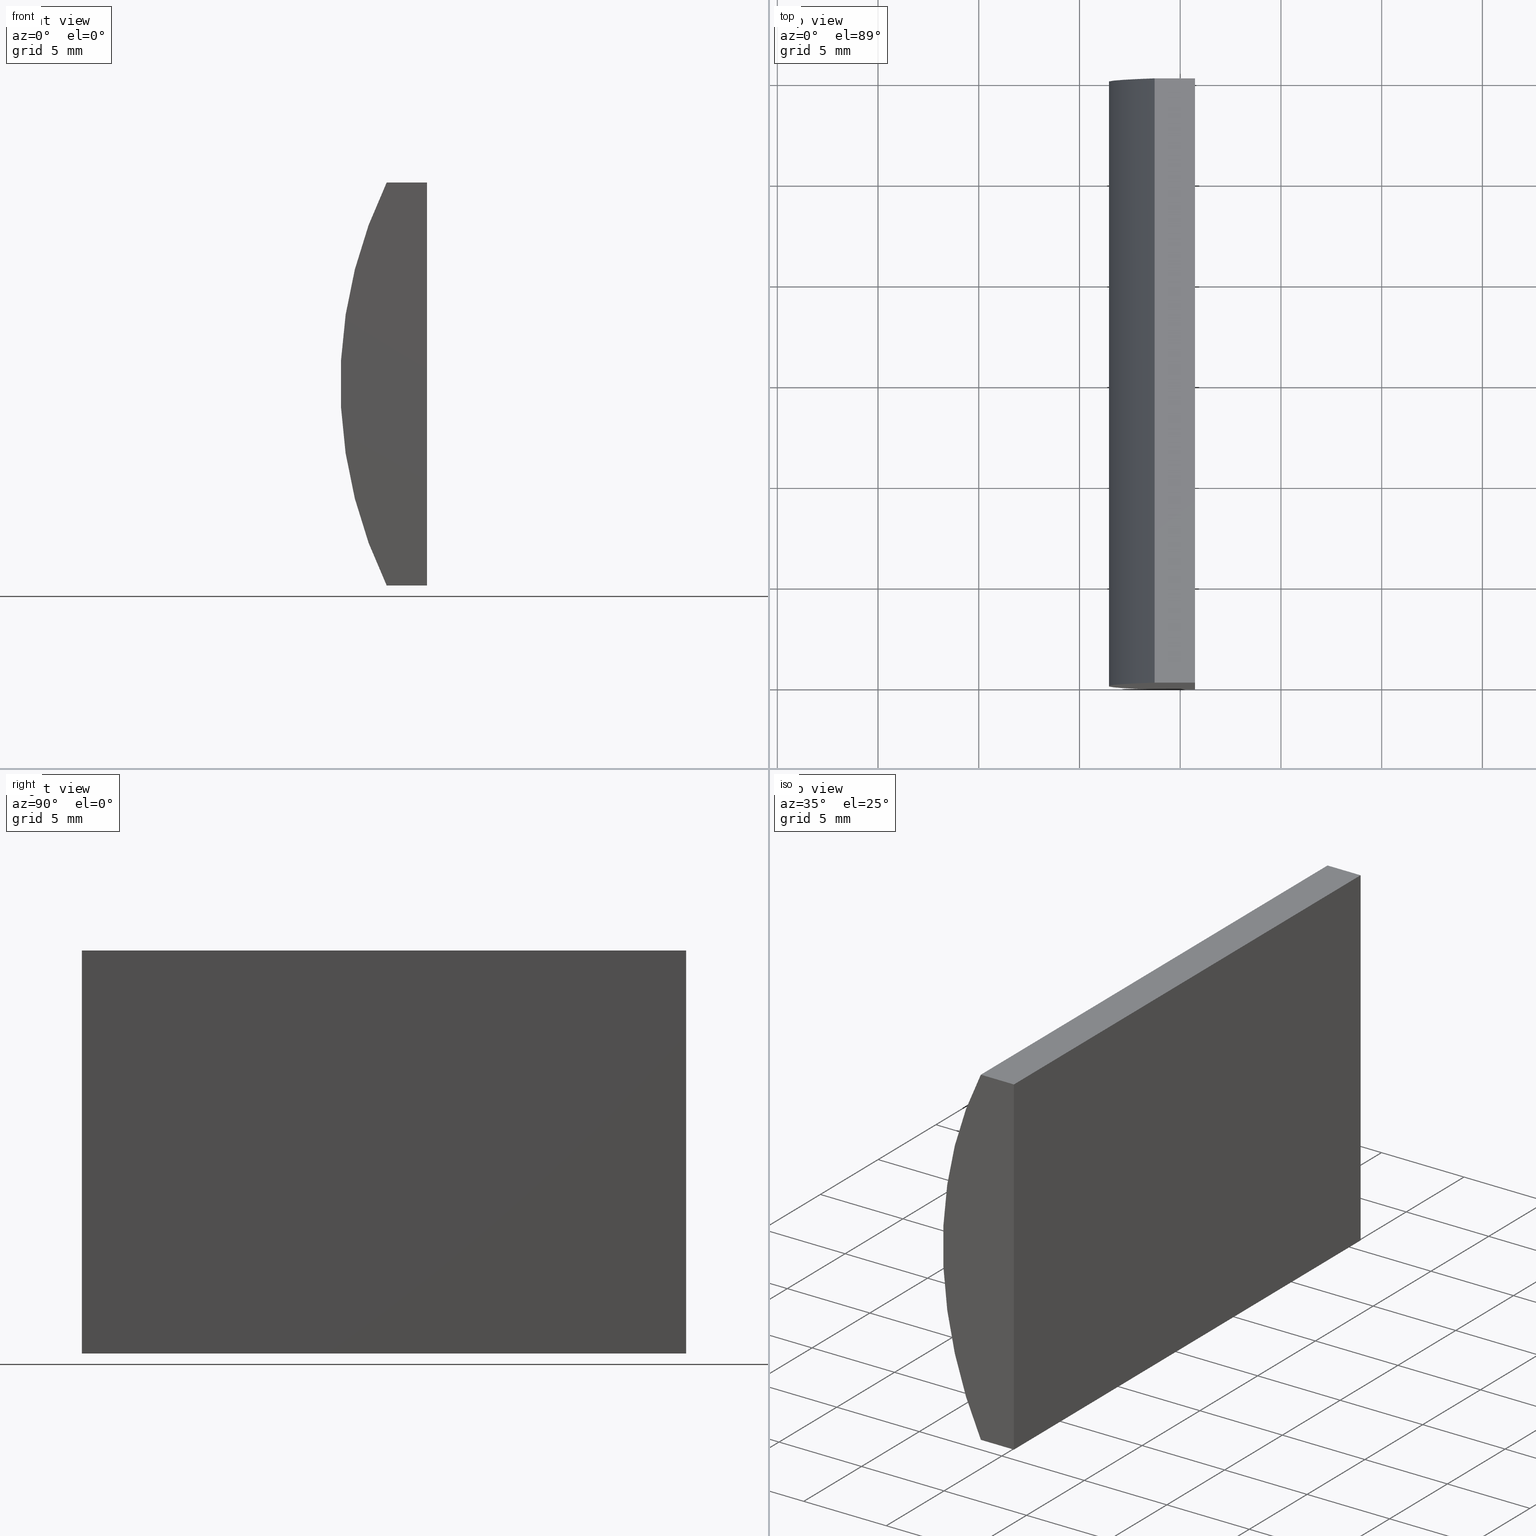
[diagram: canonical four-view strip — front | top / right | iso, engineering-drawing reading convention]
A machine part, canonical four-view strip (front | top / right | iso — engineering-drawing reading convention). The complete STEP part file that produces these views, byte-faithful:
ISO-10303-21;
HEADER;
FILE_DESCRIPTION (( 'STEP AP214' ),
    '1' );
FILE_NAME ('155295.STEP',
    '2019-06-26T06:27:41',
    ( 'user' ),
    ( '΢���й�' ),
    'SwSTEP 2.0',
    'SolidWorks 2016',
    '' );
FILE_SCHEMA (( 'AUTOMOTIVE_DESIGN' ));
ENDSEC;

DATA;
#1 = FILL_AREA_STYLE_COLOUR ( '', #80 ) ;
#2 = CARTESIAN_POINT ( 'NONE',  ( -16.26823863667994600, 30.00000000000000000, -10.00000000000000000 ) ) ;
#3 = CARTESIAN_POINT ( 'NONE',  ( -16.26823863667994600, 30.00000000000000000, 10.00000000000000000 ) ) ;
#4 = VECTOR ( 'NONE', #164, 1000.000000000000000 ) ;
#5 = DIRECTION ( 'NONE',  ( 0.0000000000000000000, 0.0000000000000000000, 1.000000000000000000 ) ) ;
#6 = LINE ( 'NONE', #158, #125 ) ;
#7 = SURFACE_STYLE_USAGE ( .BOTH. , #76 ) ;
#8 =( NAMED_UNIT ( * ) SI_UNIT ( $, .STERADIAN. ) SOLID_ANGLE_UNIT ( ) );
#9 = EDGE_CURVE ( 'NONE', #44, #12, #161, .T. ) ;
#10 = AXIS2_PLACEMENT_3D ( 'NONE', #2, #32, #70 ) ;
#11 = ORIENTED_EDGE ( 'NONE', *, *, #199, .F. ) ;
#12 = VERTEX_POINT ( 'NONE', #132 ) ;
#13 = PRODUCT_DEFINITION_SHAPE ( 'NONE', 'NONE',  #116 ) ;
#14 = SURFACE_STYLE_FILL_AREA ( #38 ) ;
#15 = ADVANCED_FACE ( 'NONE', ( #172 ), #33, .F. ) ;
#16 = PRODUCT_RELATED_PRODUCT_CATEGORY ( 'part', '', ( #97 ) ) ;
#17 = ORIENTED_EDGE ( 'NONE', *, *, #64, .T. ) ;
#18 = LINE ( 'NONE', #134, #113 ) ;
#19 = CARTESIAN_POINT ( 'NONE',  ( 4.355204334851265500, 0.0000000000000000000, 4.286263797015675000E-017 ) ) ;
#20 = DIRECTION ( 'NONE',  ( -0.0000000000000000000, -1.000000000000000000, -0.0000000000000000000 ) ) ;
#21 = EDGE_CURVE ( 'NONE', #121, #118, #65, .T. ) ;
#22 = CARTESIAN_POINT ( 'NONE',  ( 0.0000000000000000000, 0.0000000000000000000, 0.0000000000000000000 ) ) ;
#23 = DIRECTION ( 'NONE',  ( -1.000000000000000000, 0.0000000000000000000, -0.0000000000000000000 ) ) ;
#24 = DIRECTION ( 'NONE',  ( 0.0000000000000000000, 0.0000000000000000000, -1.000000000000000000 ) ) ;
#25 = LINE ( 'NONE', #182, #4 ) ;
#26 = MECHANICAL_DESIGN_GEOMETRIC_PRESENTATION_REPRESENTATION (  '', ( #160 ), #69 ) ;
#27 = ORIENTED_EDGE ( 'NONE', *, *, #199, .T. ) ;
#28 = AXIS2_PLACEMENT_3D ( 'NONE', #19, #81, #171 ) ;
#29 = PRESENTATION_LAYER_ASSIGNMENT (  '', '', ( #160 ) ) ;
#30 = EDGE_LOOP ( 'NONE', ( #124, #98, #71, #135 ) ) ;
#31 = FACE_OUTER_BOUND ( 'NONE', #30, .T. ) ;
#32 = DIRECTION ( 'NONE',  ( 0.0000000000000000000, 0.0000000000000000000, 1.000000000000000000 ) ) ;
#33 = PLANE ( 'NONE',  #137 ) ;
#34 = CIRCLE ( 'NONE', #177, 22.92000000000000200 ) ;
#35 = CARTESIAN_POINT ( 'NONE',  ( 4.355204334851265500, 0.0000000000000000000, 4.286263797015675000E-017 ) ) ;
#36 = CARTESIAN_POINT ( 'NONE',  ( -14.26479566514874300, 0.0000000000000000000, -10.00000000000000000 ) ) ;
#37 = VECTOR ( 'NONE', #148, 1000.000000000000000 ) ;
#38 = FILL_AREA_STYLE ('',( #1 ) ) ;
#39 = ORIENTED_EDGE ( 'NONE', *, *, #127, .T. ) ;
#40 = VERTEX_POINT ( 'NONE', #3 ) ;
#41 = DIRECTION ( 'NONE',  ( 0.0000000000000000000, 1.000000000000000000, 0.0000000000000000000 ) ) ;
#42 = EDGE_CURVE ( 'NONE', #53, #44, #34, .T. ) ;
#43 = EDGE_LOOP ( 'NONE', ( #189, #179, #55, #17 ) ) ;
#44 = VERTEX_POINT ( 'NONE', #119 ) ;
#45 = ADVANCED_FACE ( 'NONE', ( #52 ), #142, .T. ) ;
#46 = EDGE_CURVE ( 'NONE', #121, #143, #107, .T. ) ;
#47 = FACE_OUTER_BOUND ( 'NONE', #106, .T. ) ;
#48 = DIRECTION ( 'NONE',  ( 0.0000000000000000000, 0.0000000000000000000, 1.000000000000000000 ) ) ;
#49 = PRESENTATION_LAYER_ASSIGNMENT (  '', '', ( #122 ) ) ;
#50 = CARTESIAN_POINT ( 'NONE',  ( -16.26823863667994600, 0.0000000000000000000, 10.00000000000000000 ) ) ;
#51 = ORIENTED_EDGE ( 'NONE', *, *, #46, .F. ) ;
#52 = FACE_OUTER_BOUND ( 'NONE', #141, .T. ) ;
#53 = VERTEX_POINT ( 'NONE', #153 ) ;
#54 = PLANE ( 'NONE',  #28 ) ;
#55 = ORIENTED_EDGE ( 'NONE', *, *, #127, .F. ) ;
#56 = VECTOR ( 'NONE', #110, 1000.000000000000000 ) ;
#57 =( NAMED_UNIT ( * ) SI_UNIT ( $, .STERADIAN. ) SOLID_ANGLE_UNIT ( ) );
#58 = MECHANICAL_DESIGN_GEOMETRIC_PRESENTATION_REPRESENTATION (  '', ( #122 ), #100 ) ;
#59 = ORIENTED_EDGE ( 'NONE', *, *, #21, .T. ) ;
#60 = ORIENTED_EDGE ( 'NONE', *, *, #46, .T. ) ;
#61 = EDGE_CURVE ( 'NONE', #40, #44, #6, .T. ) ;
#62 = FILL_AREA_STYLE ('',( #159 ) ) ;
#63 = DIRECTION ( 'NONE',  ( -0.0000000000000000000, -1.000000000000000000, -0.0000000000000000000 ) ) ;
#64 = EDGE_CURVE ( 'NONE', #118, #53, #92, .T. ) ;
#65 = LINE ( 'NONE', #73, #198 ) ;
#66 = DIRECTION ( 'NONE',  ( 0.0000000000000000000, -0.0000000000000000000, 1.000000000000000000 ) ) ;
#67 = EDGE_LOOP ( 'NONE', ( #178, #51, #84, #88 ) ) ;
#68 = AXIS2_PLACEMENT_3D ( 'NONE', #95, #63, #138 ) ;
#69 =( GEOMETRIC_REPRESENTATION_CONTEXT ( 3 ) GLOBAL_UNCERTAINTY_ASSIGNED_CONTEXT ( ( #147 ) ) GLOBAL_UNIT_ASSIGNED_CONTEXT ( ( #114, #72, #8 ) ) REPRESENTATION_CONTEXT ( 'NONE', 'WORKASPACE' ) );
#70 = DIRECTION ( 'NONE',  ( 1.000000000000000000, 0.0000000000000000000, -0.0000000000000000000 ) ) ;
#71 = ORIENTED_EDGE ( 'NONE', *, *, #90, .F. ) ;
#72 =( NAMED_UNIT ( * ) PLANE_ANGLE_UNIT ( ) SI_UNIT ( $, .RADIAN. ) );
#73 = CARTESIAN_POINT ( 'NONE',  ( -16.26823863667994600, 30.00000000000000000, -10.00000000000000000 ) ) ;
#74 = VECTOR ( 'NONE', #146, 1000.000000000000000 ) ;
#75 = ORIENTED_EDGE ( 'NONE', *, *, #21, .F. ) ;
#76 = SURFACE_SIDE_STYLE ('',( #14 ) ) ;
#77 = DIRECTION ( 'NONE',  ( -1.000000000000000000, -0.0000000000000000000, -0.0000000000000000000 ) ) ;
#78 = APPLICATION_CONTEXT ( 'automotive_design' ) ;
#79 = ORIENTED_EDGE ( 'NONE', *, *, #145, .F. ) ;
#80 = COLOUR_RGB ( '',1.000000000000000000, 1.000000000000000000, 1.000000000000000000 ) ;
#81 = DIRECTION ( 'NONE',  ( 0.0000000000000000000, 1.000000000000000000, 0.0000000000000000000 ) ) ;
#82 = PLANE ( 'NONE',  #10 ) ;
#83 = MANIFOLD_SOLID_BREP ( '͹̨-����1', #120 ) ;
#84 = ORIENTED_EDGE ( 'NONE', *, *, #180, .F. ) ;
#85 = AXIS2_PLACEMENT_3D ( 'NONE', #22, #5, #157 ) ;
#86 = ORIENTED_EDGE ( 'NONE', *, *, #180, .T. ) ;
#87 = LINE ( 'NONE', #169, #204 ) ;
#88 = ORIENTED_EDGE ( 'NONE', *, *, #145, .T. ) ;
#89 = PRODUCT_DEFINITION_FORMATION_WITH_SPECIFIED_SOURCE ( '�κ�', '', #97, .NOT_KNOWN. ) ;
#90 = EDGE_CURVE ( 'NONE', #12, #143, #181, .T. ) ;
#91 = DIRECTION ( 'NONE',  ( 0.0000000000000000000, 1.000000000000000000, 0.0000000000000000000 ) ) ;
#92 = LINE ( 'NONE', #144, #37 ) ;
#93 = ORIENTED_EDGE ( 'NONE', *, *, #9, .T. ) ;
#94 = ADVANCED_BREP_SHAPE_REPRESENTATION ( '155295', ( #83, #85 ), #196 ) ;
#95 = CARTESIAN_POINT ( 'NONE',  ( 4.355204334851265500, 30.00000000000000000, 4.286263797015675000E-017 ) ) ;
#96 = CARTESIAN_POINT ( 'NONE',  ( -14.26479566514873600, 30.00000000000000000, 10.00000000000000000 ) ) ;
#97 = PRODUCT ( '155295', '155295', '', ( #170 ) ) ;
#98 = ORIENTED_EDGE ( 'NONE', *, *, #203, .F. ) ;
#99 = PRESENTATION_STYLE_ASSIGNMENT (( #7 ) ) ;
#100 =( GEOMETRIC_REPRESENTATION_CONTEXT ( 3 ) GLOBAL_UNCERTAINTY_ASSIGNED_CONTEXT ( ( #183 ) ) GLOBAL_UNIT_ASSIGNED_CONTEXT ( ( #188, #176, #57 ) ) REPRESENTATION_CONTEXT ( 'NONE', 'WORKASPACE' ) );
#101 = DIRECTION ( 'NONE',  ( 0.0000000000000000000, 1.000000000000000000, 0.0000000000000000000 ) ) ;
#102 = CARTESIAN_POINT ( 'NONE',  ( -16.26823863667994600, 30.00000000000000000, -10.00000000000000000 ) ) ;
#103 = AXIS2_PLACEMENT_3D ( 'NONE', #152, #101, #66 ) ;
#104 = ADVANCED_FACE ( 'NONE', ( #175 ), #200, .T. ) ;
#105 = APPLICATION_PROTOCOL_DEFINITION ( 'draft international standard', 'automotive_design', 1998, #154 ) ;
#106 = EDGE_LOOP ( 'NONE', ( #184, #111, #75, #60 ) ) ;
#107 = LINE ( 'NONE', #126, #187 ) ;
#108 = DIRECTION ( 'NONE',  ( -1.000000000000000000, 0.0000000000000000000, 3.469446951953614200E-016 ) ) ;
#109 = AXIS2_PLACEMENT_3D ( 'NONE', #139, #91, #123 ) ;
#110 = DIRECTION ( 'NONE',  ( -0.0000000000000000000, -1.000000000000000000, -0.0000000000000000000 ) ) ;
#111 = ORIENTED_EDGE ( 'NONE', *, *, #64, .F. ) ;
#112 = DIRECTION ( 'NONE',  ( 1.000000000000000000, 0.0000000000000000000, 0.0000000000000000000 ) ) ;
#113 = VECTOR ( 'NONE', #167, 1000.000000000000000 ) ;
#114 =( LENGTH_UNIT ( ) NAMED_UNIT ( * ) SI_UNIT ( .MILLI., .METRE. ) );
#115 = COLOUR_RGB ( '',1.000000000000000000, 1.000000000000000000, 1.000000000000000000 ) ;
#116 = PRODUCT_DEFINITION ( 'δ֪', '', #89, #163 ) ;
#117 = SURFACE_STYLE_FILL_AREA ( #62 ) ;
#118 = VERTEX_POINT ( 'NONE', #102 ) ;
#119 = CARTESIAN_POINT ( 'NONE',  ( -16.26823863667994600, 0.0000000000000000000, 10.00000000000000000 ) ) ;
#120 = CLOSED_SHELL ( 'NONE', ( #104, #149, #15, #165, #45, #168 ) ) ;
#121 = VERTEX_POINT ( 'NONE', #136 ) ;
#122 = STYLED_ITEM ( 'NONE', ( #191 ), #83 ) ;
#123 = DIRECTION ( 'NONE',  ( 0.0000000000000000000, 0.0000000000000000000, 1.000000000000000000 ) ) ;
#124 = ORIENTED_EDGE ( 'NONE', *, *, #42, .F. ) ;
#125 = VECTOR ( 'NONE', #162, 1000.000000000000000 ) ;
#126 = CARTESIAN_POINT ( 'NONE',  ( -14.26479566514874300, 30.00000000000000000, -10.00000000000000000 ) ) ;
#127 = EDGE_CURVE ( 'NONE', #118, #40, #156, .T. ) ;
#128 = CARTESIAN_POINT ( 'NONE',  ( -14.26479566514873600, 30.00000000000000000, 10.00000000000000000 ) ) ;
#129 = DIRECTION ( 'NONE',  ( -1.000000000000000000, -0.0000000000000000000, -0.0000000000000000000 ) ) ;
#130 =( NAMED_UNIT ( * ) PLANE_ANGLE_UNIT ( ) SI_UNIT ( $, .RADIAN. ) );
#131 =( NAMED_UNIT ( * ) SI_UNIT ( $, .STERADIAN. ) SOLID_ANGLE_UNIT ( ) );
#132 = CARTESIAN_POINT ( 'NONE',  ( -14.26479566514873600, 0.0000000000000000000, 10.00000000000000000 ) ) ;
#133 = APPLICATION_PROTOCOL_DEFINITION ( 'draft international standard', 'automotive_design', 1998, #78 ) ;
#134 = CARTESIAN_POINT ( 'NONE',  ( -16.26823863667994600, 30.00000000000000000, 10.00000000000000000 ) ) ;
#135 = ORIENTED_EDGE ( 'NONE', *, *, #9, .F. ) ;
#136 = CARTESIAN_POINT ( 'NONE',  ( -14.26479566514874300, 30.00000000000000000, -10.00000000000000000 ) ) ;
#137 = AXIS2_PLACEMENT_3D ( 'NONE', #190, #108, #173 ) ;
#138 = DIRECTION ( 'NONE',  ( 0.0000000000000000000, 0.0000000000000000000, -1.000000000000000000 ) ) ;
#139 = CARTESIAN_POINT ( 'NONE',  ( 4.355204334851265500, 30.00000000000000000, 4.286263797015675000E-017 ) ) ;
#140 = CARTESIAN_POINT ( 'NONE',  ( -16.26823863667994600, 30.00000000000000000, 10.00000000000000000 ) ) ;
#141 = EDGE_LOOP ( 'NONE', ( #39, #27, #86, #59 ) ) ;
#142 = PLANE ( 'NONE',  #103 ) ;
#143 = VERTEX_POINT ( 'NONE', #150 ) ;
#144 = CARTESIAN_POINT ( 'NONE',  ( -16.26823863667994600, 30.00000000000000000, -10.00000000000000000 ) ) ;
#145 = EDGE_CURVE ( 'NONE', #202, #12, #185, .T. ) ;
#146 = DIRECTION ( 'NONE',  ( -3.469446951953614200E-016, -0.0000000000000000000, -1.000000000000000000 ) ) ;
#147 = UNCERTAINTY_MEASURE_WITH_UNIT (LENGTH_MEASURE( 1.000000000000000100E-005 ), #114, 'distance_accuracy_value', 'NONE');
#148 = DIRECTION ( 'NONE',  ( -0.0000000000000000000, -1.000000000000000000, -0.0000000000000000000 ) ) ;
#149 = ADVANCED_FACE ( 'NONE', ( #195 ), #186, .F. ) ;
#150 = CARTESIAN_POINT ( 'NONE',  ( -14.26479566514874300, 0.0000000000000000000, -10.00000000000000000 ) ) ;
#151 = AXIS2_PLACEMENT_3D ( 'NONE', #140, #24, #23 ) ;
#152 = CARTESIAN_POINT ( 'NONE',  ( 4.355204334851265500, 30.00000000000000000, 4.286263797015675000E-017 ) ) ;
#153 = CARTESIAN_POINT ( 'NONE',  ( -16.26823863667994600, 0.0000000000000000000, -10.00000000000000000 ) ) ;
#154 = APPLICATION_CONTEXT ( 'automotive_design' ) ;
#155 =( LENGTH_UNIT ( ) NAMED_UNIT ( * ) SI_UNIT ( .MILLI., .METRE. ) );
#156 = CIRCLE ( 'NONE', #109, 22.92000000000000200 ) ;
#157 = DIRECTION ( 'NONE',  ( 1.000000000000000000, 0.0000000000000000000, 0.0000000000000000000 ) ) ;
#158 = CARTESIAN_POINT ( 'NONE',  ( -16.26823863667994600, 30.00000000000000000, 10.00000000000000000 ) ) ;
#159 = FILL_AREA_STYLE_COLOUR ( '', #115 ) ;
#160 = STYLED_ITEM ( 'NONE', ( #99 ), #94 ) ;
#161 = LINE ( 'NONE', #50, #174 ) ;
#162 = DIRECTION ( 'NONE',  ( -0.0000000000000000000, -1.000000000000000000, -0.0000000000000000000 ) ) ;
#163 = PRODUCT_DEFINITION_CONTEXT ( 'detailed design', #154, 'design' ) ;
#164 = DIRECTION ( 'NONE',  ( -3.469446951953614200E-016, -0.0000000000000000000, -1.000000000000000000 ) ) ;
#165 = ADVANCED_FACE ( 'NONE', ( #47 ), #82, .F. ) ;
#166 = EDGE_LOOP ( 'NONE', ( #93, #79, #11, #194 ) ) ;
#167 = DIRECTION ( 'NONE',  ( 1.000000000000000000, 0.0000000000000000000, 0.0000000000000000000 ) ) ;
#168 = ADVANCED_FACE ( 'NONE', ( #31 ), #54, .F. ) ;
#169 = CARTESIAN_POINT ( 'NONE',  ( -16.26823863667994600, 0.0000000000000000000, -10.00000000000000000 ) ) ;
#170 = PRODUCT_CONTEXT ( 'NONE', #78, 'mechanical' ) ;
#171 = DIRECTION ( 'NONE',  ( 0.0000000000000000000, -0.0000000000000000000, 1.000000000000000000 ) ) ;
#172 = FACE_OUTER_BOUND ( 'NONE', #67, .T. ) ;
#173 = DIRECTION ( 'NONE',  ( 3.469446951953614200E-016, 0.0000000000000000000, 1.000000000000000000 ) ) ;
#174 = VECTOR ( 'NONE', #112, 1000.000000000000000 ) ;
#175 = FACE_OUTER_BOUND ( 'NONE', #43, .T. ) ;
#176 =( NAMED_UNIT ( * ) PLANE_ANGLE_UNIT ( ) SI_UNIT ( $, .RADIAN. ) );
#177 = AXIS2_PLACEMENT_3D ( 'NONE', #35, #41, #48 ) ;
#178 = ORIENTED_EDGE ( 'NONE', *, *, #90, .T. ) ;
#179 = ORIENTED_EDGE ( 'NONE', *, *, #61, .F. ) ;
#180 = EDGE_CURVE ( 'NONE', #202, #121, #25, .T. ) ;
#181 = LINE ( 'NONE', #36, #74 ) ;
#182 = CARTESIAN_POINT ( 'NONE',  ( -14.26479566514874300, 30.00000000000000000, -10.00000000000000000 ) ) ;
#183 = UNCERTAINTY_MEASURE_WITH_UNIT (LENGTH_MEASURE( 1.000000000000000100E-005 ), #188, 'distance_accuracy_value', 'NONE');
#184 = ORIENTED_EDGE ( 'NONE', *, *, #203, .T. ) ;
#185 = LINE ( 'NONE', #128, #56 ) ;
#186 = PLANE ( 'NONE',  #151 ) ;
#187 = VECTOR ( 'NONE', #20, 1000.000000000000000 ) ;
#188 =( LENGTH_UNIT ( ) NAMED_UNIT ( * ) SI_UNIT ( .MILLI., .METRE. ) );
#189 = ORIENTED_EDGE ( 'NONE', *, *, #42, .T. ) ;
#190 = CARTESIAN_POINT ( 'NONE',  ( -14.26479566514874300, 30.00000000000000000, -10.00000000000000000 ) ) ;
#191 = PRESENTATION_STYLE_ASSIGNMENT (( #197 ) ) ;
#192 = SURFACE_SIDE_STYLE ('',( #117 ) ) ;
#193 = SHAPE_DEFINITION_REPRESENTATION ( #13, #94 ) ;
#194 = ORIENTED_EDGE ( 'NONE', *, *, #61, .T. ) ;
#195 = FACE_OUTER_BOUND ( 'NONE', #166, .T. ) ;
#196 =( GEOMETRIC_REPRESENTATION_CONTEXT ( 3 ) GLOBAL_UNCERTAINTY_ASSIGNED_CONTEXT ( ( #201 ) ) GLOBAL_UNIT_ASSIGNED_CONTEXT ( ( #155, #130, #131 ) ) REPRESENTATION_CONTEXT ( 'NONE', 'WORKASPACE' ) );
#197 = SURFACE_STYLE_USAGE ( .BOTH. , #192 ) ;
#198 = VECTOR ( 'NONE', #129, 1000.000000000000000 ) ;
#199 = EDGE_CURVE ( 'NONE', #40, #202, #18, .T. ) ;
#200 = CYLINDRICAL_SURFACE ( 'NONE', #68, 22.92000000000000200 ) ;
#201 = UNCERTAINTY_MEASURE_WITH_UNIT (LENGTH_MEASURE( 1.000000000000000100E-005 ), #155, 'distance_accuracy_value', 'NONE');
#202 = VERTEX_POINT ( 'NONE', #96 ) ;
#203 = EDGE_CURVE ( 'NONE', #143, #53, #87, .T. ) ;
#204 = VECTOR ( 'NONE', #77, 1000.000000000000000 ) ;
ENDSEC;
END-ISO-10303-21;
